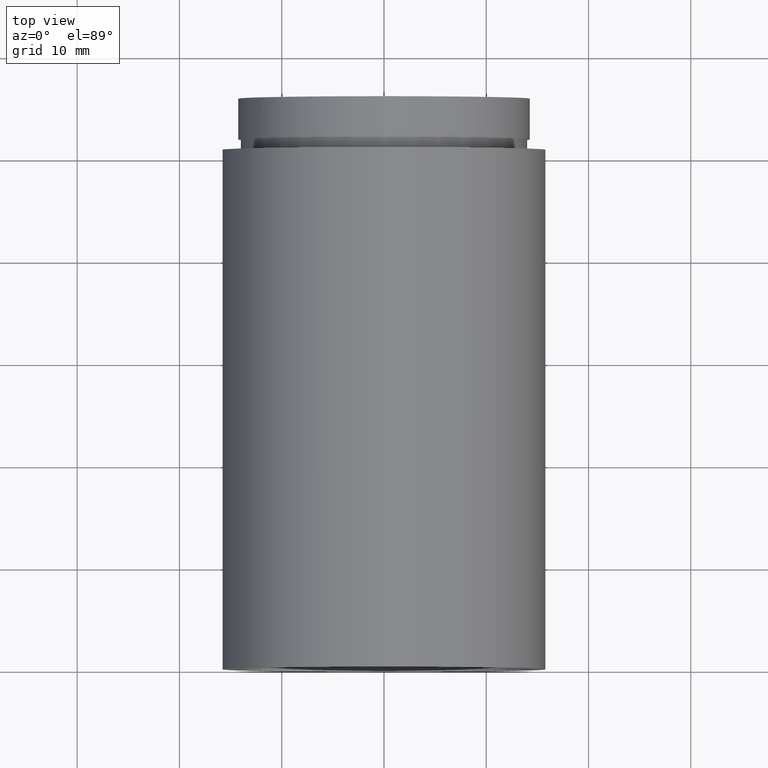
[diagram: clean part render]
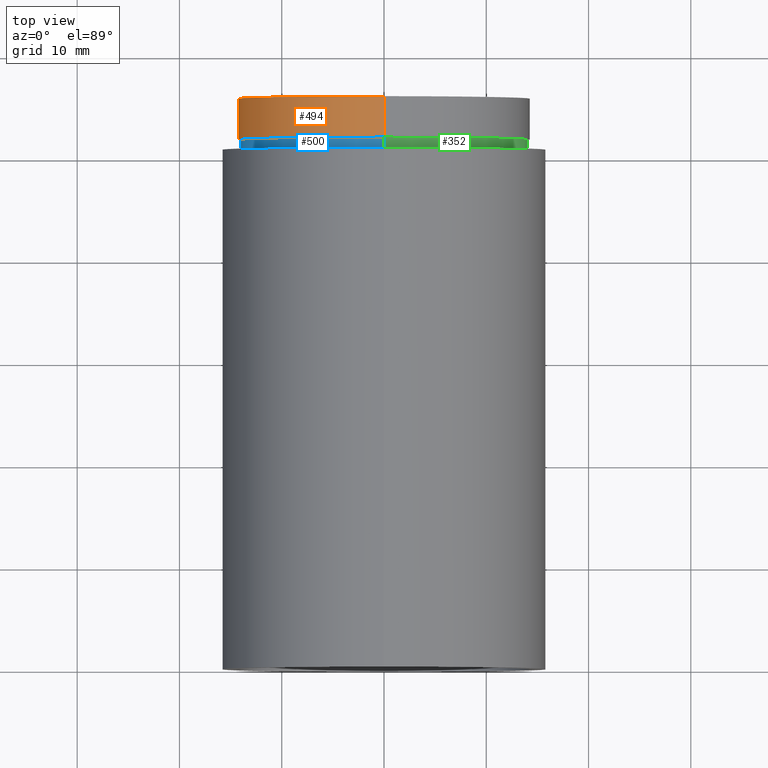
[diagram: same view with three faces highlighted in distinct colors, each labeled with its STEP entity id]
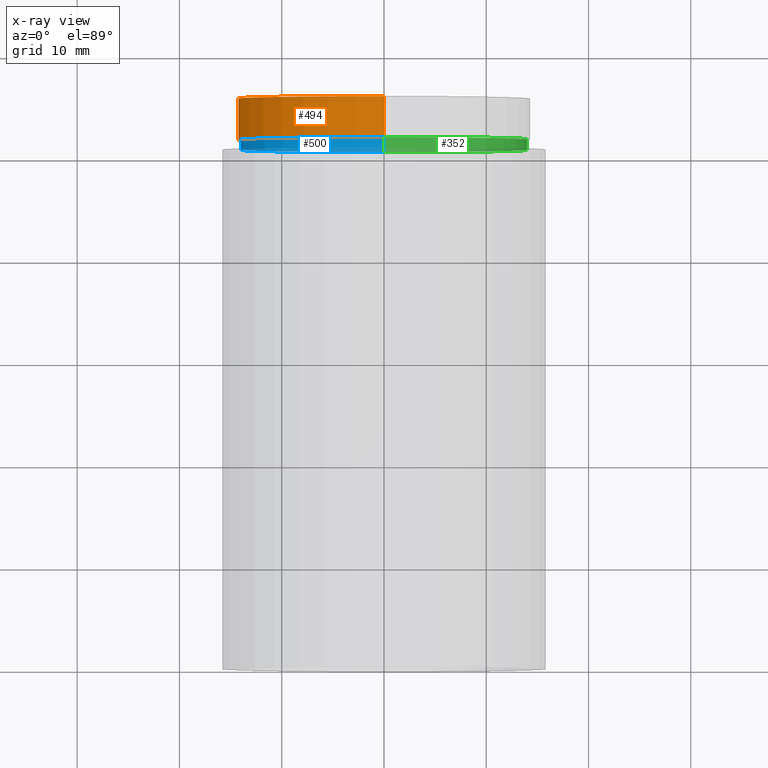
[diagram: x-ray of the same camera — body ghosted, the three highlighted faces saturated]
A machine part, top view with three faces highlighted in distinct colors.
The next image is the same camera in x-ray (body ghosted, the three faces saturated) — at least one of them is partly hidden behind the body in this view.
Their STEP definitions:

[orange] entity #494 — the highlighted cylindrical surface (partial cylindrical patch) has radius 14.25 mm, axis along (-0, 1, -0).
#6 = AXIS2_PLACEMENT_3D ( 'NONE', #520, #522, #86 ) ;
#15 = CYLINDRICAL_SURFACE ( 'NONE', #527, 14.25000000000001400 ) ;
#44 = DIRECTION ( 'NONE',  ( -0.0000000000000000000, 1.000000000000000000, -0.0000000000000000000 ) ) ;
#86 = DIRECTION ( 'NONE',  ( 0.0000000000000000000, 0.0000000000000000000, 1.000000000000000000 ) ) ;
#95 = FACE_OUTER_BOUND ( 'NONE', #543, .T. ) ;
#99 = CARTESIAN_POINT ( 'NONE',  ( 0.0000000000000000000, 161.3761669434274500, 0.0000000000000000000 ) ) ;
#145 = CARTESIAN_POINT ( 'NONE',  ( 0.0000000000000000000, 51.79999999999998300, 14.25000000000001400 ) ) ;
#152 = DIRECTION ( 'NONE',  ( -0.0000000000000000000, 1.000000000000000000, -0.0000000000000000000 ) ) ;
#169 = VECTOR ( 'NONE', #576, 1000.000000000000000 ) ;
#200 = CARTESIAN_POINT ( 'NONE',  ( 1.745121688784980200E-015, 161.3761669434274500, -14.25000000000001400 ) ) ;
#202 = LINE ( 'NONE', #200, #169 ) ;
#219 = EDGE_CURVE ( 'NONE', #601, #370, #202, .T. ) ;
#267 = VERTEX_POINT ( 'NONE', #328 ) ;
#270 = ORIENTED_EDGE ( 'NONE', *, *, #414, .F. ) ;
#281 = ORIENTED_EDGE ( 'NONE', *, *, #219, .F. ) ;
#284 = LINE ( 'NONE', #443, #304 ) ;
#285 = AXIS2_PLACEMENT_3D ( 'NONE', #340, #44, #486 ) ;
#296 = CARTESIAN_POINT ( 'NONE',  ( 1.745121688784980200E-015, 51.79999999999998300, -14.25000000000001400 ) ) ;
#299 = ORIENTED_EDGE ( 'NONE', *, *, #564, .T. ) ;
#304 = VECTOR ( 'NONE', #501, 1000.000000000000000 ) ;
#328 = CARTESIAN_POINT ( 'NONE',  ( 0.0000000000000000000, 55.79999999999999000, 14.25000000000001400 ) ) ;
#340 = CARTESIAN_POINT ( 'NONE',  ( 0.0000000000000000000, 55.79999999999999000, 0.0000000000000000000 ) ) ;
#365 = EDGE_CURVE ( 'NONE', #601, #435, #558, .T. ) ;
#370 = VERTEX_POINT ( 'NONE', #372 ) ;
#372 = CARTESIAN_POINT ( 'NONE',  ( 1.745121688784980200E-015, 55.79999999999999000, -14.25000000000001400 ) ) ;
#391 = ORIENTED_EDGE ( 'NONE', *, *, #365, .T. ) ;
#414 = EDGE_CURVE ( 'NONE', #370, #267, #492, .T. ) ;
#435 = VERTEX_POINT ( 'NONE', #145 ) ;
#443 = CARTESIAN_POINT ( 'NONE',  ( 0.0000000000000000000, 161.3761669434274500, 14.25000000000001400 ) ) ;
#486 = DIRECTION ( 'NONE',  ( 0.0000000000000000000, 0.0000000000000000000, 1.000000000000000000 ) ) ;
#492 = CIRCLE ( 'NONE', #285, 14.25000000000001400 ) ;
#494 = ADVANCED_FACE ( 'NONE', ( #95 ), #15, .T. ) ;
#501 = DIRECTION ( 'NONE',  ( -0.0000000000000000000, 1.000000000000000000, -0.0000000000000000000 ) ) ;
#520 = CARTESIAN_POINT ( 'NONE',  ( 0.0000000000000000000, 51.79999999999998300, 0.0000000000000000000 ) ) ;
#522 = DIRECTION ( 'NONE',  ( -0.0000000000000000000, 1.000000000000000000, -0.0000000000000000000 ) ) ;
#527 = AXIS2_PLACEMENT_3D ( 'NONE', #99, #152, #584 ) ;
#543 = EDGE_LOOP ( 'NONE', ( #281, #391, #299, #270 ) ) ;
#558 = CIRCLE ( 'NONE', #6, 14.25000000000001400 ) ;
#564 = EDGE_CURVE ( 'NONE', #435, #267, #284, .T. ) ;
#576 = DIRECTION ( 'NONE',  ( -0.0000000000000000000, 1.000000000000000000, -0.0000000000000000000 ) ) ;
#584 = DIRECTION ( 'NONE',  ( 0.0000000000000000000, 0.0000000000000000000, 1.000000000000000000 ) ) ;
#601 = VERTEX_POINT ( 'NONE', #296 ) ;

[blue] entity #500 — the highlighted cylindrical surface (partial cylindrical patch) has radius 14 mm, axis along (-0, 1, -0).
#2 = CARTESIAN_POINT ( 'NONE',  ( 0.0000000000000000000, 51.79999999999998300, 0.0000000000000000000 ) ) ;
#18 = ORIENTED_EDGE ( 'NONE', *, *, #42, .T. ) ;
#31 = CARTESIAN_POINT ( 'NONE',  ( 0.0000000000000000000, 161.3761669434274500, 14.00000000000001200 ) ) ;
#39 = DIRECTION ( 'NONE',  ( 0.0000000000000000000, 0.0000000000000000000, 1.000000000000000000 ) ) ;
#41 = DIRECTION ( 'NONE',  ( -0.0000000000000000000, 1.000000000000000000, -0.0000000000000000000 ) ) ;
#42 = EDGE_CURVE ( 'NONE', #186, #495, #507, .T. ) ;
#93 = DIRECTION ( 'NONE',  ( 0.0000000000000000000, 0.0000000000000000000, 1.000000000000000000 ) ) ;
#94 = CYLINDRICAL_SURFACE ( 'NONE', #577, 14.00000000000001200 ) ;
#103 = EDGE_CURVE ( 'NONE', #495, #212, #423, .T. ) ;
#111 = CIRCLE ( 'NONE', #516, 14.00000000000001200 ) ;
#131 = CARTESIAN_POINT ( 'NONE',  ( 0.0000000000000000000, 50.79999999999998300, 0.0000000000000000000 ) ) ;
#137 = DIRECTION ( 'NONE',  ( 0.0000000000000000000, 0.0000000000000000000, 1.000000000000000000 ) ) ;
#148 = ORIENTED_EDGE ( 'NONE', *, *, #489, .F. ) ;
#165 = ORIENTED_EDGE ( 'NONE', *, *, #463, .F. ) ;
#177 = VECTOR ( 'NONE', #389, 1000.000000000000000 ) ;
#186 = VERTEX_POINT ( 'NONE', #487 ) ;
#212 = VERTEX_POINT ( 'NONE', #493 ) ;
#237 = DIRECTION ( 'NONE',  ( -0.0000000000000000000, 1.000000000000000000, -0.0000000000000000000 ) ) ;
#240 = CARTESIAN_POINT ( 'NONE',  ( 0.0000000000000000000, 50.79999999999998300, 14.00000000000001200 ) ) ;
#242 = CARTESIAN_POINT ( 'NONE',  ( 1.714505518806296000E-015, 51.79999999999998300, -14.00000000000001200 ) ) ;
#252 = EDGE_LOOP ( 'NONE', ( #165, #18, #616, #148 ) ) ;
#389 = DIRECTION ( 'NONE',  ( -0.0000000000000000000, 1.000000000000000000, -0.0000000000000000000 ) ) ;
#406 = VERTEX_POINT ( 'NONE', #242 ) ;
#408 = FACE_OUTER_BOUND ( 'NONE', #252, .T. ) ;
#423 = LINE ( 'NONE', #31, #525 ) ;
#463 = EDGE_CURVE ( 'NONE', #186, #406, #561, .T. ) ;
#487 = CARTESIAN_POINT ( 'NONE',  ( 1.714505518806296000E-015, 50.79999999999998300, -14.00000000000001200 ) ) ;
#489 = EDGE_CURVE ( 'NONE', #406, #212, #111, .T. ) ;
#491 = DIRECTION ( 'NONE',  ( -0.0000000000000000000, 1.000000000000000000, -0.0000000000000000000 ) ) ;
#493 = CARTESIAN_POINT ( 'NONE',  ( 0.0000000000000000000, 51.79999999999998300, 14.00000000000001200 ) ) ;
#495 = VERTEX_POINT ( 'NONE', #240 ) ;
#500 = ADVANCED_FACE ( 'NONE', ( #408 ), #94, .T. ) ;
#507 = CIRCLE ( 'NONE', #573, 14.00000000000001200 ) ;
#516 = AXIS2_PLACEMENT_3D ( 'NONE', #2, #491, #39 ) ;
#525 = VECTOR ( 'NONE', #237, 1000.000000000000000 ) ;
#529 = CARTESIAN_POINT ( 'NONE',  ( 0.0000000000000000000, 161.3761669434274500, 0.0000000000000000000 ) ) ;
#561 = LINE ( 'NONE', #619, #177 ) ;
#573 = AXIS2_PLACEMENT_3D ( 'NONE', #131, #609, #137 ) ;
#577 = AXIS2_PLACEMENT_3D ( 'NONE', #529, #41, #93 ) ;
#609 = DIRECTION ( 'NONE',  ( -0.0000000000000000000, 1.000000000000000000, -0.0000000000000000000 ) ) ;
#616 = ORIENTED_EDGE ( 'NONE', *, *, #103, .T. ) ;
#619 = CARTESIAN_POINT ( 'NONE',  ( 1.714505518806296000E-015, 161.3761669434274500, -14.00000000000001200 ) ) ;

[green] entity #352 — the highlighted cylindrical surface (partial cylindrical patch) has radius 14 mm, axis along (-0, 1, -0).
#17 = CIRCLE ( 'NONE', #128, 14.00000000000001200 ) ;
#29 = CARTESIAN_POINT ( 'NONE',  ( 0.0000000000000000000, 161.3761669434274500, 0.0000000000000000000 ) ) ;
#31 = CARTESIAN_POINT ( 'NONE',  ( 0.0000000000000000000, 161.3761669434274500, 14.00000000000001200 ) ) ;
#103 = EDGE_CURVE ( 'NONE', #495, #212, #423, .T. ) ;
#128 = AXIS2_PLACEMENT_3D ( 'NONE', #334, #197, #530 ) ;
#158 = DIRECTION ( 'NONE',  ( -0.0000000000000000000, 1.000000000000000000, -0.0000000000000000000 ) ) ;
#177 = VECTOR ( 'NONE', #389, 1000.000000000000000 ) ;
#186 = VERTEX_POINT ( 'NONE', #487 ) ;
#195 = ORIENTED_EDGE ( 'NONE', *, *, #463, .T. ) ;
#197 = DIRECTION ( 'NONE',  ( -0.0000000000000000000, 1.000000000000000000, -0.0000000000000000000 ) ) ;
#212 = VERTEX_POINT ( 'NONE', #493 ) ;
#237 = DIRECTION ( 'NONE',  ( -0.0000000000000000000, 1.000000000000000000, -0.0000000000000000000 ) ) ;
#240 = CARTESIAN_POINT ( 'NONE',  ( 0.0000000000000000000, 50.79999999999998300, 14.00000000000001200 ) ) ;
#242 = CARTESIAN_POINT ( 'NONE',  ( 1.714505518806296000E-015, 51.79999999999998300, -14.00000000000001200 ) ) ;
#257 = CIRCLE ( 'NONE', #264, 14.00000000000001200 ) ;
#264 = AXIS2_PLACEMENT_3D ( 'NONE', #586, #158, #447 ) ;
#317 = AXIS2_PLACEMENT_3D ( 'NONE', #29, #323, #420 ) ;
#323 = DIRECTION ( 'NONE',  ( -0.0000000000000000000, 1.000000000000000000, -0.0000000000000000000 ) ) ;
#334 = CARTESIAN_POINT ( 'NONE',  ( 0.0000000000000000000, 50.79999999999998300, 0.0000000000000000000 ) ) ;
#350 = EDGE_LOOP ( 'NONE', ( #467, #195, #411, #593 ) ) ;
#352 = ADVANCED_FACE ( 'NONE', ( #388 ), #465, .T. ) ;
#388 = FACE_OUTER_BOUND ( 'NONE', #350, .T. ) ;
#389 = DIRECTION ( 'NONE',  ( -0.0000000000000000000, 1.000000000000000000, -0.0000000000000000000 ) ) ;
#406 = VERTEX_POINT ( 'NONE', #242 ) ;
#411 = ORIENTED_EDGE ( 'NONE', *, *, #613, .F. ) ;
#420 = DIRECTION ( 'NONE',  ( 0.0000000000000000000, 0.0000000000000000000, 1.000000000000000000 ) ) ;
#423 = LINE ( 'NONE', #31, #525 ) ;
#447 = DIRECTION ( 'NONE',  ( 0.0000000000000000000, 0.0000000000000000000, 1.000000000000000000 ) ) ;
#453 = EDGE_CURVE ( 'NONE', #495, #186, #17, .T. ) ;
#463 = EDGE_CURVE ( 'NONE', #186, #406, #561, .T. ) ;
#465 = CYLINDRICAL_SURFACE ( 'NONE', #317, 14.00000000000001200 ) ;
#467 = ORIENTED_EDGE ( 'NONE', *, *, #453, .T. ) ;
#487 = CARTESIAN_POINT ( 'NONE',  ( 1.714505518806296000E-015, 50.79999999999998300, -14.00000000000001200 ) ) ;
#493 = CARTESIAN_POINT ( 'NONE',  ( 0.0000000000000000000, 51.79999999999998300, 14.00000000000001200 ) ) ;
#495 = VERTEX_POINT ( 'NONE', #240 ) ;
#525 = VECTOR ( 'NONE', #237, 1000.000000000000000 ) ;
#530 = DIRECTION ( 'NONE',  ( 0.0000000000000000000, 0.0000000000000000000, 1.000000000000000000 ) ) ;
#561 = LINE ( 'NONE', #619, #177 ) ;
#586 = CARTESIAN_POINT ( 'NONE',  ( 0.0000000000000000000, 51.79999999999998300, 0.0000000000000000000 ) ) ;
#593 = ORIENTED_EDGE ( 'NONE', *, *, #103, .F. ) ;
#613 = EDGE_CURVE ( 'NONE', #212, #406, #257, .T. ) ;
#619 = CARTESIAN_POINT ( 'NONE',  ( 1.714505518806296000E-015, 161.3761669434274500, -14.00000000000001200 ) ) ;